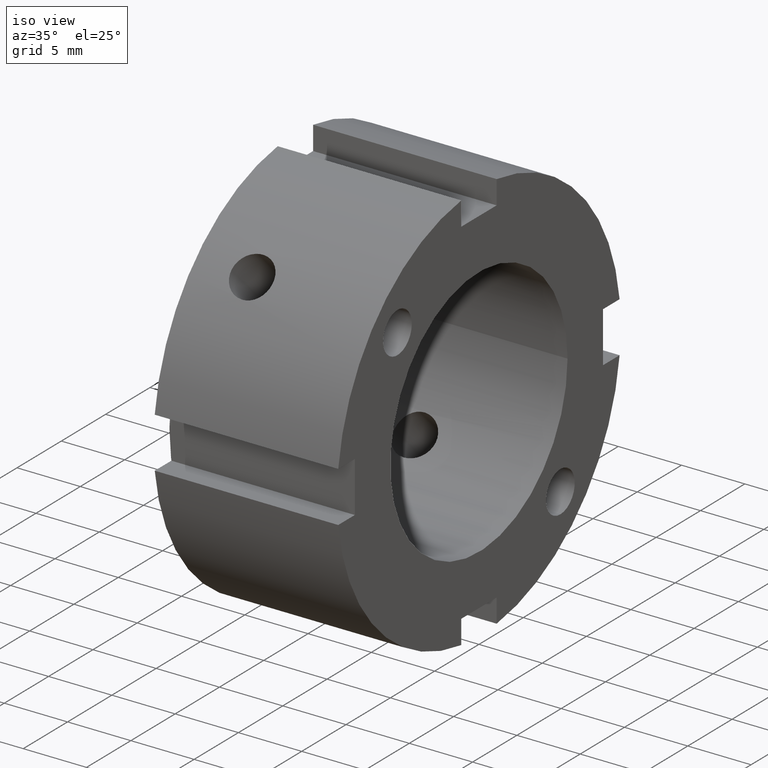
[diagram: clean part render]
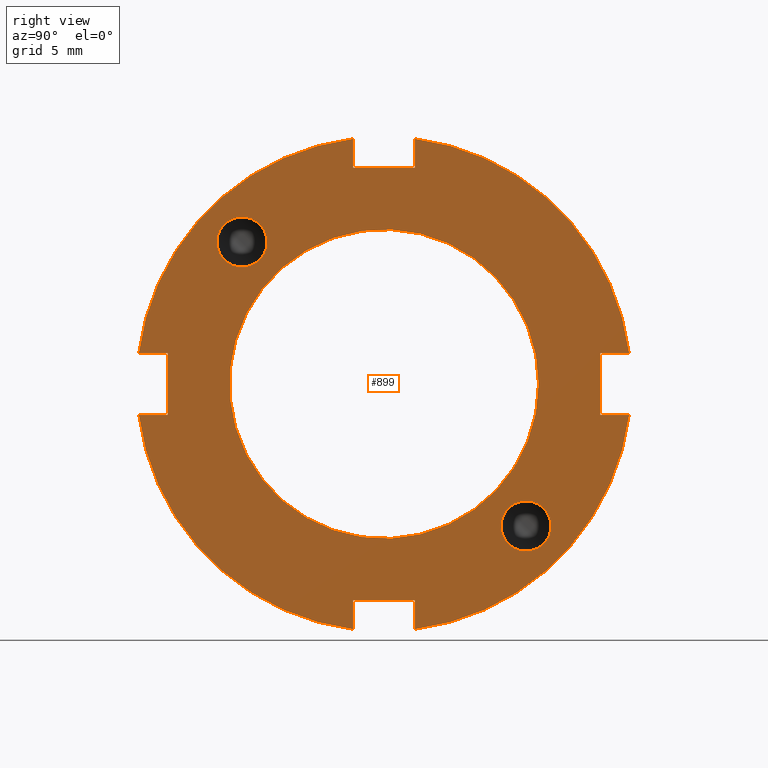
[diagram: tour spotlight — one face highlighted and labeled with its STEP entity id]
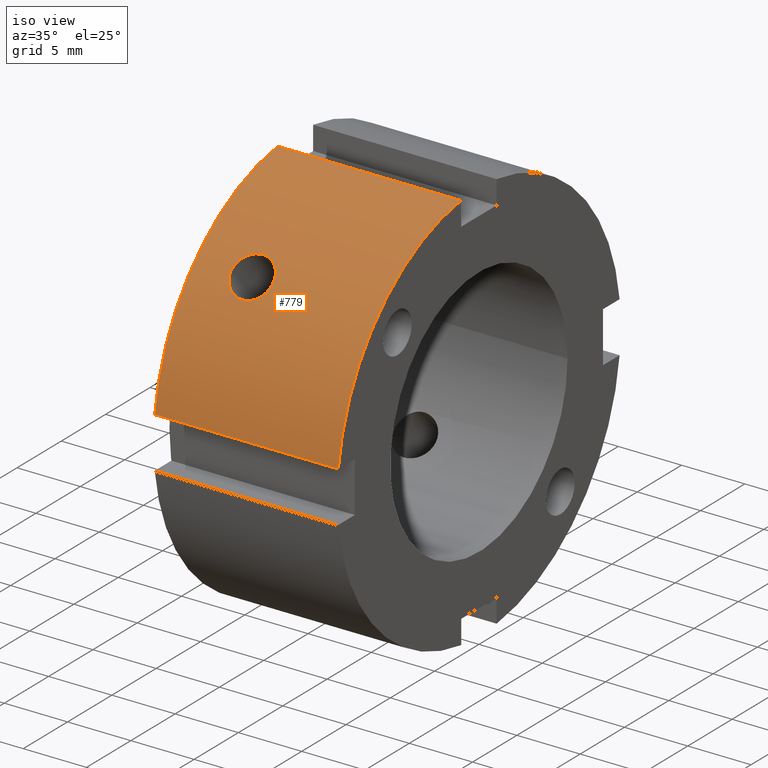
[diagram: tour spotlight — one face highlighted and labeled with its STEP entity id]
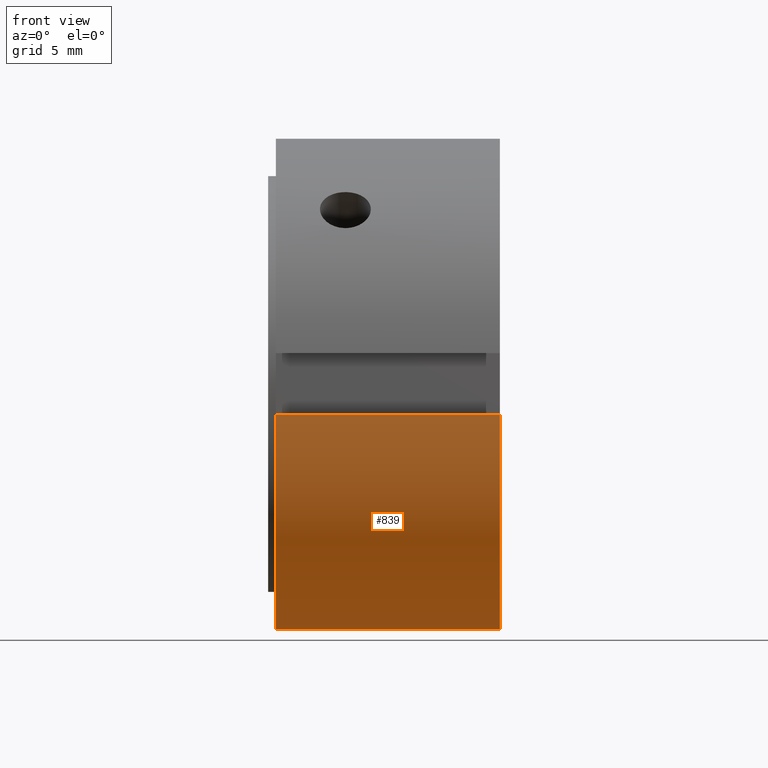
[diagram: tour spotlight — one face highlighted and labeled with its STEP entity id]
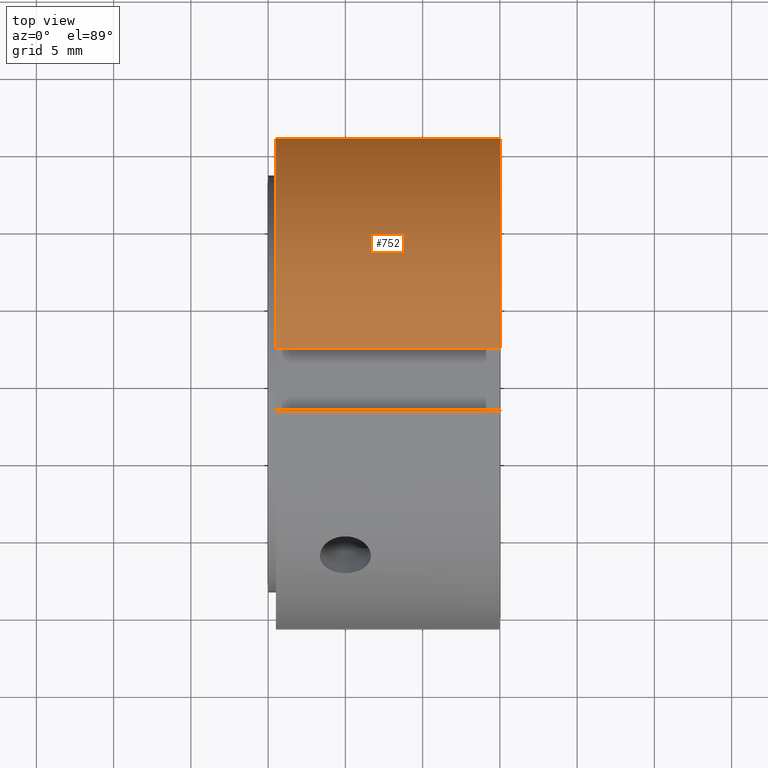
[diagram: tour spotlight — one face highlighted and labeled with its STEP entity id]
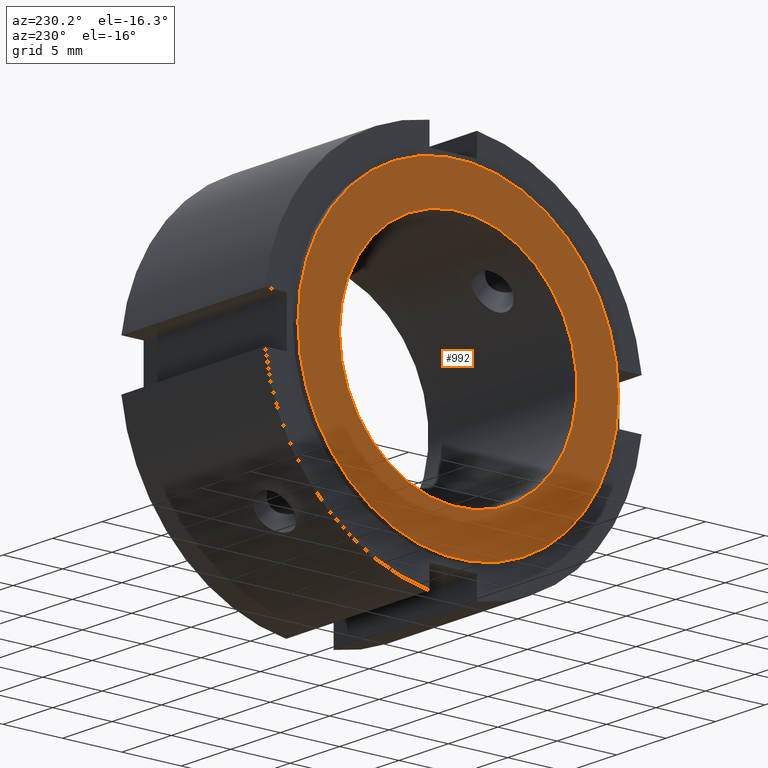
[diagram: tour spotlight — one face highlighted and labeled with its STEP entity id]
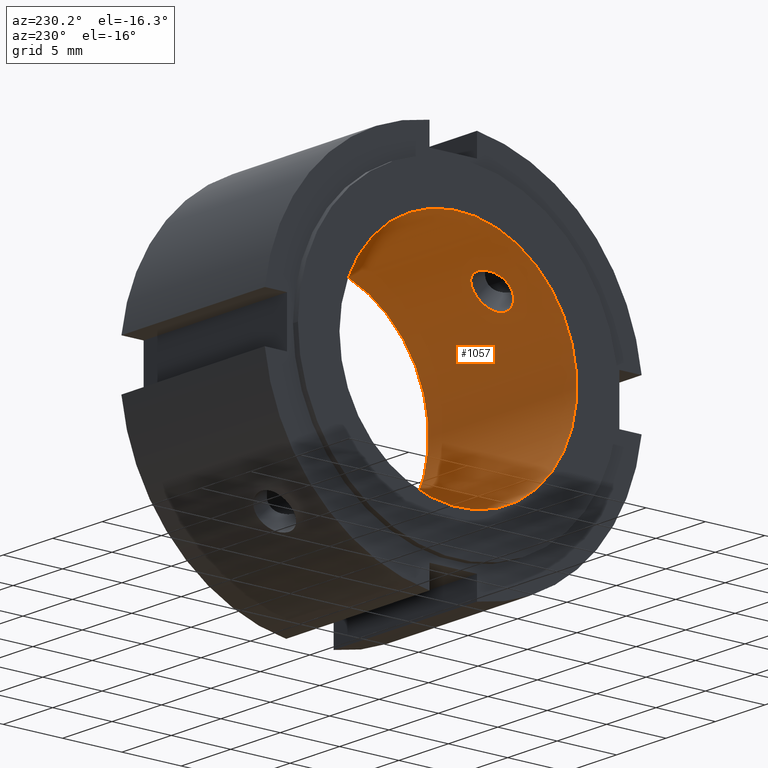
[diagram: tour spotlight — one face highlighted and labeled with its STEP entity id]
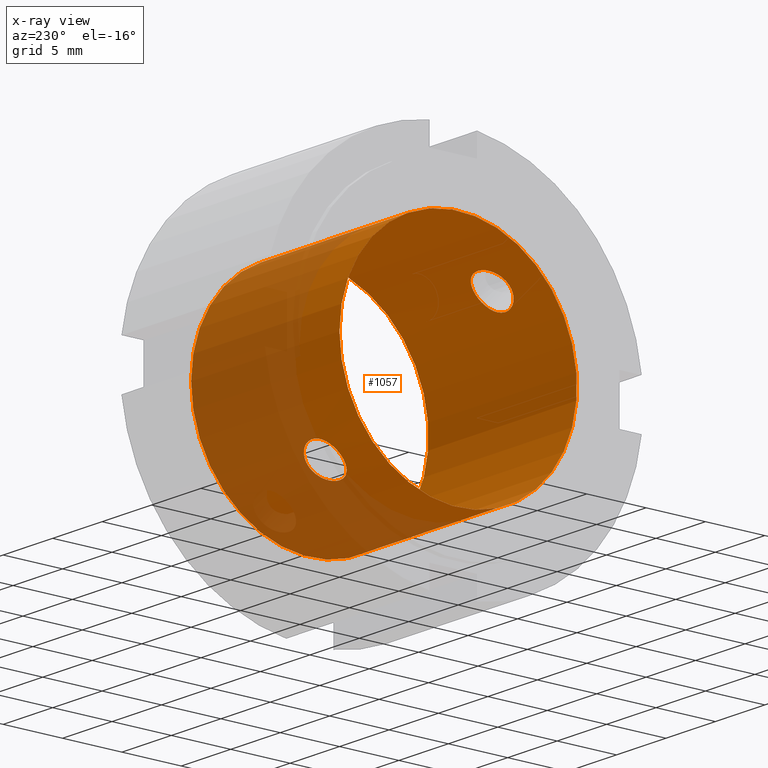
[diagram: x-ray of the same camera — body ghosted, this tour face saturated]
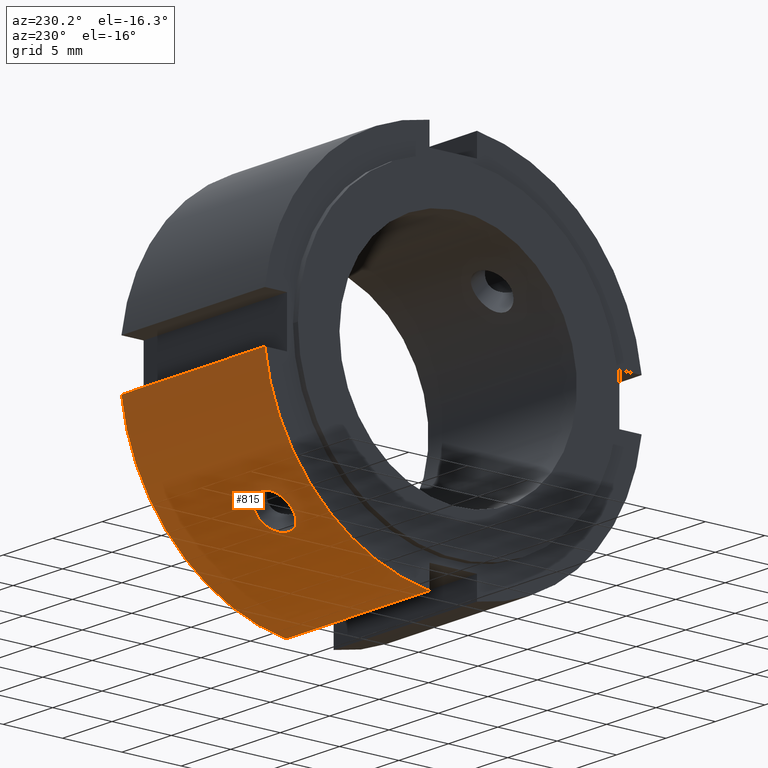
[diagram: tour spotlight — one face highlighted and labeled with its STEP entity id]
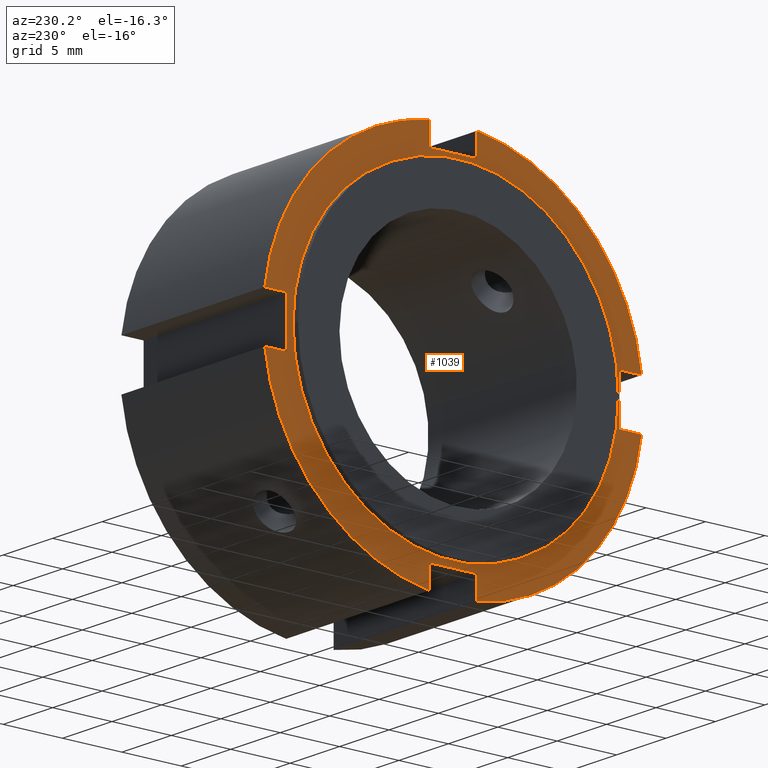
[diagram: tour spotlight — one face highlighted and labeled with its STEP entity id]
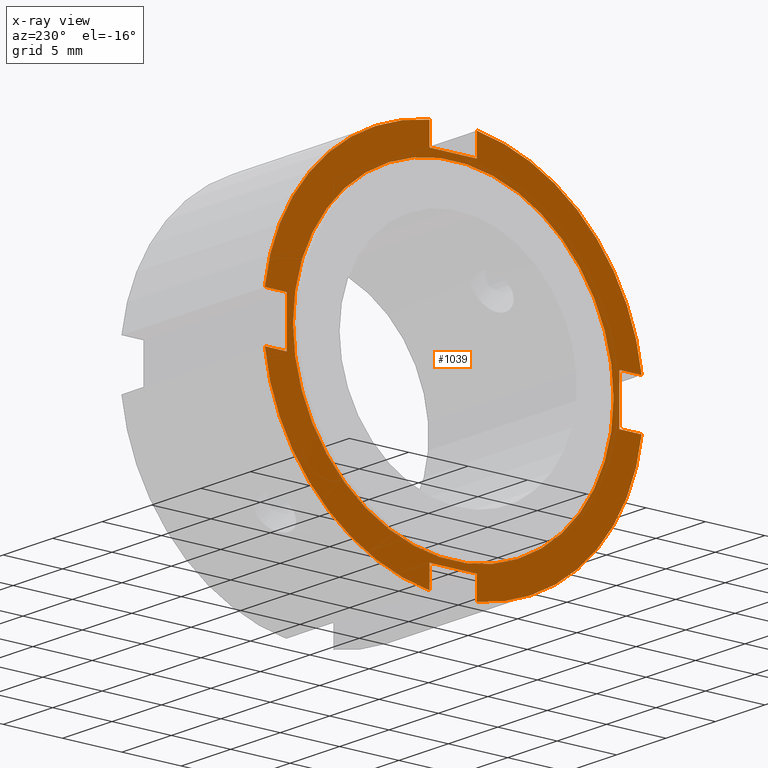
[diagram: x-ray of the same camera — body ghosted, this tour face saturated]
A machine part: a face-by-face anatomy tour. The part has 25 B-rep faces; the first image is the clean iso view, then the 8 largest visible faces are spotlighted one at a time (largest first), each with its STEP entity span.

Face 1 — right view, entity #899. In plain terms, the highlighted planar face has unit normal (1, 0, 0).
Definition (entity closure, byte-faithful):
#73=CARTESIAN_POINT('',(14.999999999999996,-10.813388155425116,9.192388155425119));
#74=VERTEX_POINT('',#73);
#75=CARTESIAN_POINT('',(14.999999999999996,-9.192388155425116,9.192388155425119));
#76=DIRECTION('',(-1.0,0.0,0.0));
#77=DIRECTION('',(0.0,-1.0,0.0));
#78=AXIS2_PLACEMENT_3D('',#75,#76,#77);
#79=CIRCLE('',#78,1.621);
#80=EDGE_CURVE('',#74,#74,#79,.T.);
#311=CARTESIAN_POINT('',(14.999999999999996,9.192388155425117,-10.81338815542512));
#312=VERTEX_POINT('',#311);
#313=CARTESIAN_POINT('',(14.999999999999996,9.192388155425117,-9.192388155425117));
#314=DIRECTION('',(-1.0,0.0,0.0));
#315=DIRECTION('',(0.0,0.0,-1.0));
#316=AXIS2_PLACEMENT_3D('',#313,#314,#315);
#317=CIRCLE('',#316,1.621);
#318=EDGE_CURVE('',#312,#312,#317,.T.);
#429=CARTESIAN_POINT('',(14.999999999999996,-2.000000000000002,-13.999999999999996));
#430=VERTEX_POINT('',#429);
#437=CARTESIAN_POINT('',(14.999999999999996,-2.000000000000003,-15.874507866387539));
#438=VERTEX_POINT('',#437);
#439=CARTESIAN_POINT('',(14.999999999999996,-2.000000000000002,-15.874507866387539));
#440=DIRECTION('',(0.0,0.0,1.0));
#441=VECTOR('',#440,1.874507866387543);
#442=LINE('',#439,#441);
#443=EDGE_CURVE('',#438,#430,#442,.T.);
#469=CARTESIAN_POINT('',(14.999999999999996,1.999999999999996,-15.874507866387539));
#470=VERTEX_POINT('',#469);
#477=CARTESIAN_POINT('',(14.999999999999996,1.999999999999997,-13.999999999999996));
#478=VERTEX_POINT('',#477);
#479=CARTESIAN_POINT('',(14.999999999999996,1.999999999999998,-13.999999999999996));
#480=DIRECTION('',(0.0,0.0,-1.0));
#481=VECTOR('',#480,1.874507866387543);
#482=LINE('',#479,#481);
#483=EDGE_CURVE('',#478,#470,#482,.T.);
#506=CARTESIAN_POINT('',(14.999999999999996,-2.000000000000004,-13.999999999999998));
#507=DIRECTION('',(0.0,1.0,0.0));
#508=VECTOR('',#507,4.000000000000001);
#509=LINE('',#506,#508);
#510=EDGE_CURVE('',#430,#478,#509,.T.);
#531=CARTESIAN_POINT('',(14.999999999999996,-13.999999999999996,2.000000000000001));
#532=VERTEX_POINT('',#531);
#539=CARTESIAN_POINT('',(14.999999999999996,-15.874507866387539,2.000000000000002));
#540=VERTEX_POINT('',#539);
#541=CARTESIAN_POINT('',(14.999999999999996,-15.874507866387539,2.000000000000001));
#542=DIRECTION('',(0.0,1.0,0.0));
#543=VECTOR('',#542,1.874507866387543);
#544=LINE('',#541,#543);
#545=EDGE_CURVE('',#540,#532,#544,.T.);
#571=CARTESIAN_POINT('',(14.999999999999996,-15.874507866387539,-1.999999999999997));
#572=VERTEX_POINT('',#571);
#579=CARTESIAN_POINT('',(14.999999999999996,-13.999999999999996,-1.999999999999998));
#580=VERTEX_POINT('',#579);
#581=CARTESIAN_POINT('',(14.999999999999996,-13.999999999999998,-1.999999999999998));
#582=DIRECTION('',(0.0,-1.0,0.0));
#583=VECTOR('',#582,1.874507866387543);
#584=LINE('',#581,#583);
#585=EDGE_CURVE('',#580,#572,#584,.T.);
#608=CARTESIAN_POINT('',(14.999999999999996,-13.999999999999995,2.000000000000001));
#609=DIRECTION('',(0.0,0.0,-1.0));
#610=VECTOR('',#609,4.0);
#611=LINE('',#608,#610);
#612=EDGE_CURVE('',#532,#580,#611,.T.);
#633=CARTESIAN_POINT('',(14.999999999999996,2.000000000000001,13.999999999999996));
#634=VERTEX_POINT('',#633);
#641=CARTESIAN_POINT('',(14.999999999999996,2.000000000000001,15.874507866387539));
#642=VERTEX_POINT('',#641);
#643=CARTESIAN_POINT('',(14.999999999999996,2.000000000000001,15.874507866387539));
#644=DIRECTION('',(0.0,0.0,-1.0));
#645=VECTOR('',#644,1.874507866387543);
#646=LINE('',#643,#645);
#647=EDGE_CURVE('',#642,#634,#646,.T.);
#673=CARTESIAN_POINT('',(14.999999999999996,-1.999999999999998,15.874507866387539));
#674=VERTEX_POINT('',#673);
#681=CARTESIAN_POINT('',(14.999999999999996,-1.999999999999999,13.999999999999996));
#682=VERTEX_POINT('',#681);
#683=CARTESIAN_POINT('',(14.999999999999996,-1.999999999999997,13.999999999999996));
#684=DIRECTION('',(0.0,0.0,1.0));
#685=VECTOR('',#684,1.874507866387543);
#686=LINE('',#683,#685);
#687=EDGE_CURVE('',#682,#674,#686,.T.);
#710=CARTESIAN_POINT('',(14.999999999999996,2.0,13.999999999999996));
#711=DIRECTION('',(0.0,-1.0,0.0));
#712=VECTOR('',#711,4.0);
#713=LINE('',#710,#712);
#714=EDGE_CURVE('',#634,#682,#713,.T.);
#726=CARTESIAN_POINT('',(14.999999999999996,15.874507866387539,2.0));
#727=VERTEX_POINT('',#726);
#728=CARTESIAN_POINT('',(14.999999999999996,0.0,0.0));
#729=DIRECTION('',(1.0,0.0,0.0));
#730=DIRECTION('',(0.0,1.0,0.0));
#731=AXIS2_PLACEMENT_3D('',#728,#729,#730);
#732=CIRCLE('',#731,15.999999999999998);
#733=EDGE_CURVE('',#727,#642,#732,.T.);
#759=CARTESIAN_POINT('',(14.999999999999996,0.0,0.0));
#760=DIRECTION('',(1.0,0.0,0.0));
#761=DIRECTION('',(0.0,1.0,0.0));
#762=AXIS2_PLACEMENT_3D('',#759,#760,#761);
#763=CIRCLE('',#762,15.999999999999998);
#764=EDGE_CURVE('',#674,#540,#763,.T.);
#795=CARTESIAN_POINT('',(14.999999999999996,15.874507866387539,-2.0));
#796=VERTEX_POINT('',#795);
#803=CARTESIAN_POINT('',(14.999999999999996,0.0,0.0));
#804=DIRECTION('',(1.0,0.0,0.0));
#805=DIRECTION('',(0.0,1.0,0.0));
#806=AXIS2_PLACEMENT_3D('',#803,#804,#805);
#807=CIRCLE('',#806,15.999999999999998);
#808=EDGE_CURVE('',#470,#796,#807,.T.);
#822=CARTESIAN_POINT('',(14.999999999999996,0.0,0.0));
#823=DIRECTION('',(1.0,0.0,0.0));
#824=DIRECTION('',(0.0,1.0,0.0));
#825=AXIS2_PLACEMENT_3D('',#822,#823,#824);
#826=CIRCLE('',#825,15.999999999999998);
#827=EDGE_CURVE('',#572,#438,#826,.T.);
#840=CARTESIAN_POINT('',(14.999999999999996,12.999999999999998,0.0));
#841=DIRECTION('',(1.0,0.0,0.0));
#842=DIRECTION('',(0.0,0.0,-1.0));
#843=AXIS2_PLACEMENT_3D('',#840,#841,#842);
#844=PLANE('',#843);
#845=ORIENTED_EDGE('',*,*,#443,.T.);
#846=ORIENTED_EDGE('',*,*,#510,.T.);
#847=ORIENTED_EDGE('',*,*,#483,.T.);
#848=ORIENTED_EDGE('',*,*,#808,.T.);
#849=CARTESIAN_POINT('',(14.999999999999996,13.999999999999996,-2.0));
#850=VERTEX_POINT('',#849);
#851=CARTESIAN_POINT('',(14.999999999999996,15.874507866387539,-2.0));
#852=DIRECTION('',(0.0,-1.0,0.0));
#853=VECTOR('',#852,1.874507866387543);
#854=LINE('',#851,#853);
#855=EDGE_CURVE('',#796,#850,#854,.T.);
#856=ORIENTED_EDGE('',*,*,#855,.T.);
#857=CARTESIAN_POINT('',(14.999999999999996,13.999999999999996,2.0));
#858=VERTEX_POINT('',#857);
#859=CARTESIAN_POINT('',(14.999999999999996,13.999999999999995,-2.0));
#860=DIRECTION('',(0.0,0.0,1.0));
#861=VECTOR('',#860,4.0);
#862=LINE('',#859,#861);
#863=EDGE_CURVE('',#850,#858,#862,.T.);
#864=ORIENTED_EDGE('',*,*,#863,.T.);
#865=CARTESIAN_POINT('',(14.999999999999996,13.999999999999996,2.0));
#866=DIRECTION('',(0.0,1.0,0.0));
#867=VECTOR('',#866,1.874507866387543);
#868=LINE('',#865,#867);
#869=EDGE_CURVE('',#858,#727,#868,.T.);
#870=ORIENTED_EDGE('',*,*,#869,.T.);
#871=ORIENTED_EDGE('',*,*,#733,.T.);
#872=ORIENTED_EDGE('',*,*,#647,.T.);
#873=ORIENTED_EDGE('',*,*,#714,.T.);
#874=ORIENTED_EDGE('',*,*,#687,.T.);
#875=ORIENTED_EDGE('',*,*,#764,.T.);
#876=ORIENTED_EDGE('',*,*,#545,.T.);
#877=ORIENTED_EDGE('',*,*,#612,.T.);
#878=ORIENTED_EDGE('',*,*,#585,.T.);
#879=ORIENTED_EDGE('',*,*,#827,.T.);
#880=EDGE_LOOP('',(#845,#846,#847,#848,#856,#864,#870,#871,#872,#873,#874,#875,#876,#877,#878,#879));
#881=FACE_OUTER_BOUND('',#880,.T.);
#882=ORIENTED_EDGE('',*,*,#80,.T.);
#883=EDGE_LOOP('',(#882));
#884=FACE_BOUND('',#883,.T.);
#885=ORIENTED_EDGE('',*,*,#318,.T.);
#886=EDGE_LOOP('',(#885));
#887=FACE_BOUND('',#886,.T.);
#888=CARTESIAN_POINT('',(14.999999999999996,10.0,0.0));
#889=VERTEX_POINT('',#888);
#890=CARTESIAN_POINT('',(14.999999999999996,0.0,0.0));
#891=DIRECTION('',(1.0,0.0,0.0));
#892=DIRECTION('',(0.0,1.0,0.0));
#893=AXIS2_PLACEMENT_3D('',#890,#891,#892);
#894=CIRCLE('',#893,10.0);
#895=EDGE_CURVE('',#889,#889,#894,.T.);
#896=ORIENTED_EDGE('',*,*,#895,.F.);
#897=EDGE_LOOP('',(#896));
#898=FACE_BOUND('',#897,.T.);
#899=ADVANCED_FACE('',(#881,#884,#887,#898),#844,.T.);

Face 2 — iso view, entity #779. In plain terms, the highlighted cylindrical surface (partial cylindrical patch) has radius 16 mm, axis along (1, 0, 0).
Definition (entity closure, byte-faithful):
#155=CARTESIAN_POINT('',(4.999999999999996,-12.420114567575144,10.086662189659545));
#156=VERTEX_POINT('',#155);
#157=CARTESIAN_POINT('',(4.999999999999996,-12.420114567575144,10.086662189659547));
#158=CARTESIAN_POINT('',(4.792663659632245,-12.420114567575144,10.086662189659547));
#159=CARTESIAN_POINT('',(4.571608693650929,-12.393953701340727,10.119143696572175));
#160=CARTESIAN_POINT('',(4.16512677785441,-12.286251284043512,10.249643255021541));
#161=CARTESIAN_POINT('',(3.979687199398132,-12.204549053884692,10.347489254358727));
#162=CARTESIAN_POINT('',(3.686860986654131,-12.012628808731057,10.569687810686009));
#163=CARTESIAN_POINT('',(3.559900775637115,-11.889556167077908,10.708866685158769));
#164=CARTESIAN_POINT('',(3.391466215537384,-11.613485061084397,11.007648989030365));
#165=CARTESIAN_POINT('',(3.349999999999995,-11.460316866524099,11.167100131445416));
#166=CARTESIAN_POINT('',(3.349999999999995,-11.167100131445405,11.460316866524106));
#167=CARTESIAN_POINT('',(3.39146621553738,-11.007648989030361,11.613485061084406));
#168=CARTESIAN_POINT('',(3.55990077563711,-10.708866685158764,11.889556167077917));
#169=CARTESIAN_POINT('',(3.68686098665413,-10.569687810685998,12.012628808731062));
#170=CARTESIAN_POINT('',(3.979687199398131,-10.34748925435872,12.204549053884699));
#171=CARTESIAN_POINT('',(4.165126777854407,-10.249643255021528,12.286251284043521));
#172=CARTESIAN_POINT('',(4.571608693650926,-10.119143696572161,12.393953701340736));
#173=CARTESIAN_POINT('',(4.792663659632245,-10.086662189659542,12.420114567575151));
#174=CARTESIAN_POINT('',(5.207336340367746,-10.086662189659542,12.420114567575151));
#175=CARTESIAN_POINT('',(5.428391306349065,-10.119143696572161,12.393953701340736));
#176=CARTESIAN_POINT('',(5.834873222145584,-10.249643255021528,12.286251284043521));
#177=CARTESIAN_POINT('',(6.020312800601859,-10.34748925435872,12.204549053884699));
#178=CARTESIAN_POINT('',(6.313139013345861,-10.569687810685998,12.012628808731062));
#179=CARTESIAN_POINT('',(6.440099224362882,-10.708866685158764,11.889556167077917));
#180=CARTESIAN_POINT('',(6.60853378446261,-11.007648989030361,11.613485061084406));
#181=CARTESIAN_POINT('',(6.649999999999996,-11.167100131445405,11.460316866524106));
#182=CARTESIAN_POINT('',(6.649999999999996,-11.460316866524099,11.167100131445418));
#183=CARTESIAN_POINT('',(6.60853378446261,-11.613485061084397,11.007648989030365));
#184=CARTESIAN_POINT('',(6.440099224362878,-11.889556167077908,10.708866685158769));
#185=CARTESIAN_POINT('',(6.313139013345861,-12.012628808731057,10.569687810686009));
#186=CARTESIAN_POINT('',(6.020312800601859,-12.204549053884692,10.347489254358727));
#187=CARTESIAN_POINT('',(5.834873222145581,-12.286251284043512,10.249643255021541));
#188=CARTESIAN_POINT('',(5.428391306349061,-12.393953701340727,10.119143696572175));
#189=CARTESIAN_POINT('',(5.207336340367748,-12.420114567575144,10.086662189659547));
#190=CARTESIAN_POINT('',(4.999999999999996,-12.420114567575144,10.086662189659547));
#191=B_SPLINE_CURVE_WITH_KNOTS('',3,(#157,#158,#159,#160,#161,#162,#163,#164,#165,#166,#167,#168,#169,#170,#171,#172,#173,#174,#175,#176,#177,#178,#179,#180,#181,#182,#183,#184,#185,#186,#187,#188,#189,#190),.UNSPECIFIED.,.T.,.U.,(4,2,2,2,2,2,2,2,2,2,2,2,2,2,2,2,4),(0.0,0.062200902110325,0.12440180422065,0.186602466740108,0.248803129259565,0.311003791779022,0.373204454298479,0.435405356408804,0.497606258519129,0.559807160629454,0.62200806273978,0.684208725259237,0.746409387778694,0.808610050298151,0.870810712817608,0.933011614927933,0.995212517038259),.UNSPECIFIED.);
#192=EDGE_CURVE('',#156,#156,#191,.T.);
#523=CARTESIAN_POINT('',(0.499999999999998,-15.874507866387539,2.000000000000002));
#524=VERTEX_POINT('',#523);
#539=CARTESIAN_POINT('',(14.999999999999996,-15.874507866387539,2.000000000000002));
#540=VERTEX_POINT('',#539);
#547=CARTESIAN_POINT('',(0.499999999999998,-15.874507866387539,2.000000000000001));
#548=DIRECTION('',(1.0,0.0,0.0));
#549=VECTOR('',#548,14.499999999999998);
#550=LINE('',#547,#549);
#551=EDGE_CURVE('',#524,#540,#550,.T.);
#663=CARTESIAN_POINT('',(0.499999999999998,-1.999999999999998,15.874507866387539));
#664=VERTEX_POINT('',#663);
#673=CARTESIAN_POINT('',(14.999999999999996,-1.999999999999998,15.874507866387539));
#674=VERTEX_POINT('',#673);
#675=CARTESIAN_POINT('',(14.999999999999996,-1.999999999999999,15.874507866387539));
#676=DIRECTION('',(-1.0,0.0,0.0));
#677=VECTOR('',#676,14.499999999999998);
#678=LINE('',#675,#677);
#679=EDGE_CURVE('',#674,#664,#678,.T.);
#753=CARTESIAN_POINT('',(7.749999999999996,0.0,0.0));
#754=DIRECTION('',(1.0,0.0,0.0));
#755=DIRECTION('',(0.0,1.0,0.0));
#756=AXIS2_PLACEMENT_3D('',#753,#754,#755);
#757=CYLINDRICAL_SURFACE('',#756,15.999999999999996);
#758=ORIENTED_EDGE('',*,*,#551,.T.);
#759=CARTESIAN_POINT('',(14.999999999999996,0.0,0.0));
#760=DIRECTION('',(1.0,0.0,0.0));
#761=DIRECTION('',(0.0,1.0,0.0));
#762=AXIS2_PLACEMENT_3D('',#759,#760,#761);
#763=CIRCLE('',#762,15.999999999999998);
#764=EDGE_CURVE('',#674,#540,#763,.T.);
#765=ORIENTED_EDGE('',*,*,#764,.F.);
#766=ORIENTED_EDGE('',*,*,#679,.T.);
#767=CARTESIAN_POINT('',(0.499999999999998,0.0,0.0));
#768=DIRECTION('',(1.0,0.0,0.0));
#769=DIRECTION('',(0.0,1.0,0.0));
#770=AXIS2_PLACEMENT_3D('',#767,#768,#769);
#771=CIRCLE('',#770,15.999999999999996);
#772=EDGE_CURVE('',#664,#524,#771,.T.);
#773=ORIENTED_EDGE('',*,*,#772,.T.);
#774=EDGE_LOOP('',(#758,#765,#766,#773));
#775=FACE_OUTER_BOUND('',#774,.T.);
#776=ORIENTED_EDGE('',*,*,#192,.T.);
#777=EDGE_LOOP('',(#776));
#778=FACE_BOUND('',#777,.T.);
#779=ADVANCED_FACE('',(#775,#778),#757,.T.);

Face 3 — front view, entity #839. In plain terms, the highlighted cylindrical surface (partial cylindrical patch) has radius 16 mm, axis along (1, 0, 0).
Definition (entity closure, byte-faithful):
#421=CARTESIAN_POINT('',(0.499999999999998,-2.000000000000003,-15.874507866387539));
#422=VERTEX_POINT('',#421);
#437=CARTESIAN_POINT('',(14.999999999999996,-2.000000000000003,-15.874507866387539));
#438=VERTEX_POINT('',#437);
#445=CARTESIAN_POINT('',(0.499999999999998,-2.000000000000003,-15.874507866387539));
#446=DIRECTION('',(1.0,0.0,0.0));
#447=VECTOR('',#446,14.499999999999998);
#448=LINE('',#445,#447);
#449=EDGE_CURVE('',#422,#438,#448,.T.);
#561=CARTESIAN_POINT('',(0.499999999999998,-15.874507866387539,-1.999999999999997));
#562=VERTEX_POINT('',#561);
#571=CARTESIAN_POINT('',(14.999999999999996,-15.874507866387539,-1.999999999999997));
#572=VERTEX_POINT('',#571);
#573=CARTESIAN_POINT('',(14.999999999999996,-15.874507866387539,-1.999999999999998));
#574=DIRECTION('',(-1.0,0.0,0.0));
#575=VECTOR('',#574,14.499999999999998);
#576=LINE('',#573,#575);
#577=EDGE_CURVE('',#572,#562,#576,.T.);
#816=CARTESIAN_POINT('',(7.749999999999996,0.0,0.0));
#817=DIRECTION('',(1.0,0.0,0.0));
#818=DIRECTION('',(0.0,1.0,0.0));
#819=AXIS2_PLACEMENT_3D('',#816,#817,#818);
#820=CYLINDRICAL_SURFACE('',#819,15.999999999999996);
#821=ORIENTED_EDGE('',*,*,#449,.T.);
#822=CARTESIAN_POINT('',(14.999999999999996,0.0,0.0));
#823=DIRECTION('',(1.0,0.0,0.0));
#824=DIRECTION('',(0.0,1.0,0.0));
#825=AXIS2_PLACEMENT_3D('',#822,#823,#824);
#826=CIRCLE('',#825,15.999999999999998);
#827=EDGE_CURVE('',#572,#438,#826,.T.);
#828=ORIENTED_EDGE('',*,*,#827,.F.);
#829=ORIENTED_EDGE('',*,*,#577,.T.);
#830=CARTESIAN_POINT('',(0.499999999999998,0.0,0.0));
#831=DIRECTION('',(1.0,0.0,0.0));
#832=DIRECTION('',(0.0,1.0,0.0));
#833=AXIS2_PLACEMENT_3D('',#830,#831,#832);
#834=CIRCLE('',#833,15.999999999999996);
#835=EDGE_CURVE('',#562,#422,#834,.T.);
#836=ORIENTED_EDGE('',*,*,#835,.T.);
#837=EDGE_LOOP('',(#821,#828,#829,#836));
#838=FACE_OUTER_BOUND('',#837,.T.);
#839=ADVANCED_FACE('',(#838),#820,.T.);

Face 4 — top view, entity #752. In plain terms, the highlighted cylindrical surface (partial cylindrical patch) has radius 16 mm, axis along (1, 0, 0).
Definition (entity closure, byte-faithful):
#625=CARTESIAN_POINT('',(0.499999999999998,2.000000000000001,15.874507866387539));
#626=VERTEX_POINT('',#625);
#641=CARTESIAN_POINT('',(14.999999999999996,2.000000000000001,15.874507866387539));
#642=VERTEX_POINT('',#641);
#649=CARTESIAN_POINT('',(0.499999999999998,2.000000000000001,15.874507866387539));
#650=DIRECTION('',(1.0,0.0,0.0));
#651=VECTOR('',#650,14.499999999999998);
#652=LINE('',#649,#651);
#653=EDGE_CURVE('',#626,#642,#652,.T.);
#720=CARTESIAN_POINT('',(7.749999999999996,0.0,0.0));
#721=DIRECTION('',(1.0,0.0,0.0));
#722=DIRECTION('',(0.0,1.0,0.0));
#723=AXIS2_PLACEMENT_3D('',#720,#721,#722);
#724=CYLINDRICAL_SURFACE('',#723,15.999999999999996);
#725=ORIENTED_EDGE('',*,*,#653,.T.);
#726=CARTESIAN_POINT('',(14.999999999999996,15.874507866387539,2.0));
#727=VERTEX_POINT('',#726);
#728=CARTESIAN_POINT('',(14.999999999999996,0.0,0.0));
#729=DIRECTION('',(1.0,0.0,0.0));
#730=DIRECTION('',(0.0,1.0,0.0));
#731=AXIS2_PLACEMENT_3D('',#728,#729,#730);
#732=CIRCLE('',#731,15.999999999999998);
#733=EDGE_CURVE('',#727,#642,#732,.T.);
#734=ORIENTED_EDGE('',*,*,#733,.F.);
#735=CARTESIAN_POINT('',(0.499999999999998,15.874507866387539,2.0));
#736=VERTEX_POINT('',#735);
#737=CARTESIAN_POINT('',(14.999999999999996,15.874507866387539,2.0));
#738=DIRECTION('',(-1.0,0.0,0.0));
#739=VECTOR('',#738,14.499999999999998);
#740=LINE('',#737,#739);
#741=EDGE_CURVE('',#727,#736,#740,.T.);
#742=ORIENTED_EDGE('',*,*,#741,.T.);
#743=CARTESIAN_POINT('',(0.499999999999998,0.0,0.0));
#744=DIRECTION('',(1.0,0.0,0.0));
#745=DIRECTION('',(0.0,1.0,0.0));
#746=AXIS2_PLACEMENT_3D('',#743,#744,#745);
#747=CIRCLE('',#746,15.999999999999996);
#748=EDGE_CURVE('',#736,#626,#747,.T.);
#749=ORIENTED_EDGE('',*,*,#748,.T.);
#750=EDGE_LOOP('',(#725,#734,#742,#749));
#751=FACE_OUTER_BOUND('',#750,.T.);
#752=ADVANCED_FACE('',(#751),#724,.T.);

Face 5 — auxiliary view, entity #992. In plain terms, the highlighted planar face has unit normal (-1, 0, 0).
Definition (entity closure, byte-faithful):
#965=CARTESIAN_POINT('',(-3.304428E-015,11.749999999999998,0.0));
#966=DIRECTION('',(-1.0,0.0,0.0));
#967=DIRECTION('',(0.0,0.0,1.0));
#968=AXIS2_PLACEMENT_3D('',#965,#966,#967);
#969=PLANE('',#968);
#970=CARTESIAN_POINT('',(-4.440892E-015,13.499999999999998,0.0));
#971=VERTEX_POINT('',#970);
#972=CARTESIAN_POINT('',(-4.440892E-015,0.0,0.0));
#973=DIRECTION('',(1.0,0.0,0.0));
#974=DIRECTION('',(0.0,1.0,0.0));
#975=AXIS2_PLACEMENT_3D('',#972,#973,#974);
#976=CIRCLE('',#975,13.499999999999998);
#977=EDGE_CURVE('',#971,#971,#976,.T.);
#978=ORIENTED_EDGE('',*,*,#977,.F.);
#979=EDGE_LOOP('',(#978));
#980=FACE_OUTER_BOUND('',#979,.T.);
#981=CARTESIAN_POINT('',(-2.167965E-015,10.0,0.0));
#982=VERTEX_POINT('',#981);
#983=CARTESIAN_POINT('',(-2.168404E-015,0.0,0.0));
#984=DIRECTION('',(1.0,0.0,0.0));
#985=DIRECTION('',(0.0,1.0,0.0));
#986=AXIS2_PLACEMENT_3D('',#983,#984,#985);
#987=CIRCLE('',#986,10.0);
#988=EDGE_CURVE('',#982,#982,#987,.T.);
#989=ORIENTED_EDGE('',*,*,#988,.T.);
#990=EDGE_LOOP('',(#989));
#991=FACE_BOUND('',#990,.T.);
#992=ADVANCED_FACE('',(#980,#991),#969,.T.);

Face 6 — auxiliary view, entity #1057. An x-ray twin of the same camera follows (body ghosted, this face saturated) — the face is partly hidden behind the body. In plain terms, the highlighted cylindrical surface (bore or boss wall) has radius 10 mm, axis along (1, 0, 0).
Definition (entity closure, byte-faithful):
#199=CARTESIAN_POINT('',(4.999999999999996,-8.140874882526072,5.807422504610468));
#200=VERTEX_POINT('',#199);
#201=CARTESIAN_POINT('',(4.999999999999996,-8.140874882526068,5.807422504610472));
#202=CARTESIAN_POINT('',(5.207588777420593,-8.140874882526068,5.807422504610472));
#203=CARTESIAN_POINT('',(5.428749508045883,-8.116597860312618,5.841926613010431));
#204=CARTESIAN_POINT('',(5.835159784607249,-8.015822172041409,5.979453336035396));
#205=CARTESIAN_POINT('',(6.020442580638714,-7.939062193465798,6.082185930628081));
#206=CARTESIAN_POINT('',(6.313006046132061,-7.756491044388869,6.31336200230672));
#207=CARTESIAN_POINT('',(6.439929404162552,-7.638383916018895,6.457286595623886));
#208=CARTESIAN_POINT('',(6.608436791928987,-7.369201970303271,6.762863398406582));
#209=CARTESIAN_POINT('',(6.649999999999996,-7.21785148001344,6.924284143717512));
#210=CARTESIAN_POINT('',(6.649999999999996,-6.9242841437175,7.217851480013449));
#211=CARTESIAN_POINT('',(6.608436791928988,-6.762863398406571,7.36920197030328));
#212=CARTESIAN_POINT('',(6.439929404162552,-6.457286595623874,7.638383916018903));
#213=CARTESIAN_POINT('',(6.313006046132061,-6.313362002306706,7.756491044388878));
#214=CARTESIAN_POINT('',(6.020442580638714,-6.08218593062807,7.939062193465805));
#215=CARTESIAN_POINT('',(5.83515978460725,-5.979453336035382,8.015822172041419));
#216=CARTESIAN_POINT('',(5.428749508045883,-5.841926613010417,8.116597860312631));
#217=CARTESIAN_POINT('',(5.207588777420593,-5.807422504610461,8.140874882526077));
#218=CARTESIAN_POINT('',(4.792411222579398,-5.807422504610461,8.140874882526077));
#219=CARTESIAN_POINT('',(4.571250491954108,-5.841926613010415,8.116597860312629));
#220=CARTESIAN_POINT('',(4.164840215392741,-5.97945333603538,8.015822172041421));
#221=CARTESIAN_POINT('',(3.979557419361278,-6.08218593062807,7.939062193465805));
#222=CARTESIAN_POINT('',(3.686993953867931,-6.313362002306707,7.756491044388878));
#223=CARTESIAN_POINT('',(3.56007059583744,-6.457286595623874,7.638383916018904));
#224=CARTESIAN_POINT('',(3.391563208071004,-6.76286339840657,7.36920197030328));
#225=CARTESIAN_POINT('',(3.349999999999995,-6.9242841437175,7.217851480013449));
#226=CARTESIAN_POINT('',(3.349999999999995,-7.21785148001344,6.924284143717512));
#227=CARTESIAN_POINT('',(3.391563208071004,-7.369201970303269,6.762863398406582));
#228=CARTESIAN_POINT('',(3.560070595837439,-7.638383916018893,6.457286595623887));
#229=CARTESIAN_POINT('',(3.68699395386793,-7.756491044388869,6.31336200230672));
#230=CARTESIAN_POINT('',(3.979557419361277,-7.939062193465798,6.082185930628081));
#231=CARTESIAN_POINT('',(4.164840215392742,-8.015822172041409,5.979453336035396));
#232=CARTESIAN_POINT('',(4.57125049195411,-8.116597860312618,5.841926613010431));
#233=CARTESIAN_POINT('',(4.792411222579398,-8.140874882526068,5.807422504610472));
#234=CARTESIAN_POINT('',(4.999999999999996,-8.140874882526068,5.807422504610472));
#235=B_SPLINE_CURVE_WITH_KNOTS('',3,(#201,#202,#203,#204,#205,#206,#207,#208,#209,#210,#211,#212,#213,#214,#215,#216,#217,#218,#219,#220,#221,#222,#223,#224,#225,#226,#227,#228,#229,#230,#231,#232,#233,#234),.UNSPECIFIED.,.T.,.U.,(4,2,2,2,2,2,2,2,2,2,2,2,2,2,2,2,4),(0.0,0.062276633226179,0.124553266452359,0.186828302721278,0.249103338990196,0.311378375259115,0.373653411528034,0.435930044754214,0.498206677980393,0.560483311206572,0.622759944432752,0.685034980701671,0.74731001697059,0.809585053239508,0.871860089508427,0.934136722734607,0.996413355960786),.UNSPECIFIED.);
#236=EDGE_CURVE('',#200,#200,#235,.T.);
#372=CARTESIAN_POINT('',(4.999999999999996,5.807422504610465,-8.140874882526072));
#373=VERTEX_POINT('',#372);
#374=CARTESIAN_POINT('',(4.999999999999996,5.807422504610465,-8.140874882526074));
#375=CARTESIAN_POINT('',(4.792411222579398,5.807422504610465,-8.140874882526074));
#376=CARTESIAN_POINT('',(4.571250491954108,5.841926613010421,-8.116597860312625));
#377=CARTESIAN_POINT('',(4.164840215392741,5.979453336035387,-8.015822172041416));
#378=CARTESIAN_POINT('',(3.979557419361278,6.082185930628075,-7.939062193465802));
#379=CARTESIAN_POINT('',(3.686993953867931,6.313362002306713,-7.756491044388874));
#380=CARTESIAN_POINT('',(3.560070595837439,6.45728659562388,-7.638383916018901));
#381=CARTESIAN_POINT('',(3.391563208071005,6.762863398406577,-7.369201970303277));
#382=CARTESIAN_POINT('',(3.349999999999995,6.924284143717506,-7.217851480013444));
#383=CARTESIAN_POINT('',(3.349999999999995,7.217851480013444,-6.924284143717507));
#384=CARTESIAN_POINT('',(3.391563208071004,7.369201970303275,-6.762863398406578));
#385=CARTESIAN_POINT('',(3.560070595837439,7.638383916018898,-6.457286595623881));
#386=CARTESIAN_POINT('',(3.68699395386793,7.756491044388874,-6.313362002306713));
#387=CARTESIAN_POINT('',(3.979557419361277,7.9390621934658,-6.082185930628077));
#388=CARTESIAN_POINT('',(4.164840215392742,8.015822172041411,-5.979453336035392));
#389=CARTESIAN_POINT('',(4.57125049195411,8.116597860312622,-5.841926613010426));
#390=CARTESIAN_POINT('',(4.792411222579397,8.140874882526072,-5.807422504610468));
#391=CARTESIAN_POINT('',(5.207588777420593,8.140874882526072,-5.807422504610468));
#392=CARTESIAN_POINT('',(5.428749508045883,8.116597860312622,-5.841926613010426));
#393=CARTESIAN_POINT('',(5.835159784607249,8.015822172041411,-5.979453336035392));
#394=CARTESIAN_POINT('',(6.020442580638714,7.9390621934658,-6.082185930628077));
#395=CARTESIAN_POINT('',(6.313006046132061,7.756491044388874,-6.313362002306713));
#396=CARTESIAN_POINT('',(6.439929404162552,7.638383916018898,-6.457286595623881));
#397=CARTESIAN_POINT('',(6.608436791928987,7.369201970303275,-6.762863398406578));
#398=CARTESIAN_POINT('',(6.649999999999996,7.217851480013444,-6.924284143717506));
#399=CARTESIAN_POINT('',(6.649999999999996,6.924284143717506,-7.217851480013444));
#400=CARTESIAN_POINT('',(6.608436791928987,6.762863398406577,-7.369201970303276));
#401=CARTESIAN_POINT('',(6.439929404162552,6.45728659562388,-7.638383916018898));
#402=CARTESIAN_POINT('',(6.313006046132061,6.313362002306713,-7.756491044388874));
#403=CARTESIAN_POINT('',(6.020442580638714,6.082185930628075,-7.939062193465802));
#404=CARTESIAN_POINT('',(5.83515978460725,5.979453336035388,-8.015822172041414));
#405=CARTESIAN_POINT('',(5.428749508045883,5.841926613010423,-8.116597860312625));
#406=CARTESIAN_POINT('',(5.207588777420593,5.807422504610465,-8.140874882526074));
#407=CARTESIAN_POINT('',(4.999999999999996,5.807422504610465,-8.140874882526074));
#408=B_SPLINE_CURVE_WITH_KNOTS('',3,(#374,#375,#376,#377,#378,#379,#380,#381,#382,#383,#384,#385,#386,#387,#388,#389,#390,#391,#392,#393,#394,#395,#396,#397,#398,#399,#400,#401,#402,#403,#404,#405,#406,#407),.UNSPECIFIED.,.T.,.U.,(4,2,2,2,2,2,2,2,2,2,2,2,2,2,2,2,4),(0.0,0.062276633226179,0.124553266452359,0.186828302721278,0.249103338990197,0.311378375259115,0.373653411528034,0.435930044754214,0.498206677980393,0.560483311206572,0.622759944432752,0.685034980701671,0.74731001697059,0.809585053239509,0.871860089508427,0.934136722734607,0.996413355960786),.UNSPECIFIED.);
#409=EDGE_CURVE('',#373,#373,#408,.T.);
#888=CARTESIAN_POINT('',(14.999999999999996,10.0,0.0));
#889=VERTEX_POINT('',#888);
#890=CARTESIAN_POINT('',(14.999999999999996,0.0,0.0));
#891=DIRECTION('',(1.0,0.0,0.0));
#892=DIRECTION('',(0.0,1.0,0.0));
#893=AXIS2_PLACEMENT_3D('',#890,#891,#892);
#894=CIRCLE('',#893,10.0);
#895=EDGE_CURVE('',#889,#889,#894,.T.);
#981=CARTESIAN_POINT('',(-2.167965E-015,10.0,0.0));
#982=VERTEX_POINT('',#981);
#983=CARTESIAN_POINT('',(-2.168404E-015,0.0,0.0));
#984=DIRECTION('',(1.0,0.0,0.0));
#985=DIRECTION('',(0.0,1.0,0.0));
#986=AXIS2_PLACEMENT_3D('',#983,#984,#985);
#987=CIRCLE('',#986,10.0);
#988=EDGE_CURVE('',#982,#982,#987,.T.);
#1040=CARTESIAN_POINT('',(7.499999999999996,0.0,0.0));
#1041=DIRECTION('',(1.0,0.0,0.0));
#1042=DIRECTION('',(0.0,1.0,0.0));
#1043=AXIS2_PLACEMENT_3D('',#1040,#1041,#1042);
#1044=CYLINDRICAL_SURFACE('',#1043,10.0);
#1045=ORIENTED_EDGE('',*,*,#988,.F.);
#1046=EDGE_LOOP('',(#1045));
#1047=FACE_OUTER_BOUND('',#1046,.T.);
#1048=ORIENTED_EDGE('',*,*,#236,.T.);
#1049=EDGE_LOOP('',(#1048));
#1050=FACE_BOUND('',#1049,.T.);
#1051=ORIENTED_EDGE('',*,*,#409,.T.);
#1052=EDGE_LOOP('',(#1051));
#1053=FACE_BOUND('',#1052,.T.);
#1054=ORIENTED_EDGE('',*,*,#895,.T.);
#1055=EDGE_LOOP('',(#1054));
#1056=FACE_BOUND('',#1055,.T.);
#1057=ADVANCED_FACE('',(#1047,#1050,#1053,#1056),#1044,.F.);

Face 7 — auxiliary view, entity #815. In plain terms, the highlighted cylindrical surface (partial cylindrical patch) has radius 16 mm, axis along (1, 0, 0).
Definition (entity closure, byte-faithful):
#328=CARTESIAN_POINT('',(4.999999999999996,10.086662189659544,-12.420114567575148));
#329=VERTEX_POINT('',#328);
#330=CARTESIAN_POINT('',(4.999999999999995,10.086662189659542,-12.420114567575149));
#331=CARTESIAN_POINT('',(5.207336340367745,10.086662189659542,-12.420114567575149));
#332=CARTESIAN_POINT('',(5.428391306349065,10.119143696572163,-12.393953701340735));
#333=CARTESIAN_POINT('',(5.834873222145586,10.24964325502153,-12.286251284043519));
#334=CARTESIAN_POINT('',(6.020312800601859,10.347489254358727,-12.204549053884694));
#335=CARTESIAN_POINT('',(6.313139013345861,10.569687810686009,-12.012628808731058));
#336=CARTESIAN_POINT('',(6.440099224362882,10.708866685158767,-11.889556167077913));
#337=CARTESIAN_POINT('',(6.60853378446261,11.007648989030363,-11.613485061084404));
#338=CARTESIAN_POINT('',(6.649999999999996,11.167100131445411,-11.460316866524103));
#339=CARTESIAN_POINT('',(6.649999999999996,11.460316866524105,-11.167100131445409));
#340=CARTESIAN_POINT('',(6.608533784462606,11.6134850610844,-11.007648989030361));
#341=CARTESIAN_POINT('',(6.440099224362875,11.889556167077913,-10.708866685158764));
#342=CARTESIAN_POINT('',(6.313139013345861,12.01262880873106,-10.569687810686004));
#343=CARTESIAN_POINT('',(6.020312800601858,12.204549053884698,-10.347489254358724));
#344=CARTESIAN_POINT('',(5.83487322214558,12.286251284043519,-10.249643255021537));
#345=CARTESIAN_POINT('',(5.428391306349061,12.393953701340735,-10.11914369657217));
#346=CARTESIAN_POINT('',(5.207336340367746,12.420114567575151,-10.086662189659542));
#347=CARTESIAN_POINT('',(4.792663659632245,12.420114567575151,-10.086662189659542));
#348=CARTESIAN_POINT('',(4.57160869365093,12.393953701340735,-10.11914369657217));
#349=CARTESIAN_POINT('',(4.16512677785441,12.286251284043519,-10.249643255021537));
#350=CARTESIAN_POINT('',(3.979687199398133,12.204549053884698,-10.347489254358724));
#351=CARTESIAN_POINT('',(3.686860986654131,12.01262880873106,-10.569687810686004));
#352=CARTESIAN_POINT('',(3.559900775637115,11.889556167077913,-10.708866685158764));
#353=CARTESIAN_POINT('',(3.391466215537384,11.6134850610844,-11.007648989030361));
#354=CARTESIAN_POINT('',(3.349999999999995,11.460316866524105,-11.167100131445409));
#355=CARTESIAN_POINT('',(3.349999999999994,11.167100131445409,-11.460316866524103));
#356=CARTESIAN_POINT('',(3.391466215537382,11.007648989030363,-11.613485061084404));
#357=CARTESIAN_POINT('',(3.55990077563711,10.708866685158767,-11.889556167077913));
#358=CARTESIAN_POINT('',(3.68686098665413,10.569687810686009,-12.012628808731058));
#359=CARTESIAN_POINT('',(3.979687199398131,10.347489254358727,-12.204549053884694));
#360=CARTESIAN_POINT('',(4.165126777854406,10.249643255021535,-12.286251284043519));
#361=CARTESIAN_POINT('',(4.571608693650925,10.119143696572166,-12.393953701340735));
#362=CARTESIAN_POINT('',(4.792663659632244,10.086662189659542,-12.420114567575149));
#363=CARTESIAN_POINT('',(4.999999999999996,10.086662189659542,-12.420114567575149));
#364=B_SPLINE_CURVE_WITH_KNOTS('',3,(#330,#331,#332,#333,#334,#335,#336,#337,#338,#339,#340,#341,#342,#343,#344,#345,#346,#347,#348,#349,#350,#351,#352,#353,#354,#355,#356,#357,#358,#359,#360,#361,#362,#363),.UNSPECIFIED.,.T.,.U.,(4,2,2,2,2,2,2,2,2,2,2,2,2,2,2,2,4),(0.0,0.062200902110325,0.124401804220651,0.186602466740108,0.248803129259565,0.311003791779022,0.373204454298479,0.435405356408804,0.497606258519129,0.559807160629455,0.62200806273978,0.684208725259237,0.746409387778694,0.808610050298151,0.870810712817608,0.933011614927933,0.995212517038259),.UNSPECIFIED.);
#365=EDGE_CURVE('',#329,#329,#364,.T.);
#459=CARTESIAN_POINT('',(0.499999999999998,1.999999999999996,-15.874507866387539));
#460=VERTEX_POINT('',#459);
#469=CARTESIAN_POINT('',(14.999999999999996,1.999999999999996,-15.874507866387539));
#470=VERTEX_POINT('',#469);
#471=CARTESIAN_POINT('',(14.999999999999996,1.999999999999996,-15.874507866387543));
#472=DIRECTION('',(-1.0,0.0,0.0));
#473=VECTOR('',#472,14.499999999999998);
#474=LINE('',#471,#473);
#475=EDGE_CURVE('',#470,#460,#474,.T.);
#780=CARTESIAN_POINT('',(7.749999999999996,0.0,0.0));
#781=DIRECTION('',(1.0,0.0,0.0));
#782=DIRECTION('',(0.0,1.0,0.0));
#783=AXIS2_PLACEMENT_3D('',#780,#781,#782);
#784=CYLINDRICAL_SURFACE('',#783,15.999999999999996);
#785=ORIENTED_EDGE('',*,*,#475,.T.);
#786=CARTESIAN_POINT('',(0.499999999999998,15.874507866387539,-2.0));
#787=VERTEX_POINT('',#786);
#788=CARTESIAN_POINT('',(0.499999999999998,0.0,0.0));
#789=DIRECTION('',(1.0,0.0,0.0));
#790=DIRECTION('',(0.0,1.0,0.0));
#791=AXIS2_PLACEMENT_3D('',#788,#789,#790);
#792=CIRCLE('',#791,15.999999999999996);
#793=EDGE_CURVE('',#460,#787,#792,.T.);
#794=ORIENTED_EDGE('',*,*,#793,.T.);
#795=CARTESIAN_POINT('',(14.999999999999996,15.874507866387539,-2.0));
#796=VERTEX_POINT('',#795);
#797=CARTESIAN_POINT('',(0.499999999999998,15.874507866387539,-2.0));
#798=DIRECTION('',(1.0,0.0,0.0));
#799=VECTOR('',#798,14.499999999999998);
#800=LINE('',#797,#799);
#801=EDGE_CURVE('',#787,#796,#800,.T.);
#802=ORIENTED_EDGE('',*,*,#801,.T.);
#803=CARTESIAN_POINT('',(14.999999999999996,0.0,0.0));
#804=DIRECTION('',(1.0,0.0,0.0));
#805=DIRECTION('',(0.0,1.0,0.0));
#806=AXIS2_PLACEMENT_3D('',#803,#804,#805);
#807=CIRCLE('',#806,15.999999999999998);
#808=EDGE_CURVE('',#470,#796,#807,.T.);
#809=ORIENTED_EDGE('',*,*,#808,.F.);
#810=EDGE_LOOP('',(#785,#794,#802,#809));
#811=FACE_OUTER_BOUND('',#810,.T.);
#812=ORIENTED_EDGE('',*,*,#365,.T.);
#813=EDGE_LOOP('',(#812));
#814=FACE_BOUND('',#813,.T.);
#815=ADVANCED_FACE('',(#811,#814),#784,.T.);

Face 8 — auxiliary view, entity #1039. An x-ray twin of the same camera follows (body ghosted, this face saturated) — the face is partly hidden behind the body. In plain terms, the highlighted planar face has unit normal (-1, 0, 0).
Definition (entity closure, byte-faithful):
#419=CARTESIAN_POINT('',(0.499999999999998,-2.000000000000002,-13.999999999999996));
#420=VERTEX_POINT('',#419);
#421=CARTESIAN_POINT('',(0.499999999999998,-2.000000000000003,-15.874507866387539));
#422=VERTEX_POINT('',#421);
#423=CARTESIAN_POINT('',(0.499999999999998,-2.000000000000002,-13.999999999999996));
#424=DIRECTION('',(0.0,0.0,-1.0));
#425=VECTOR('',#424,1.874507866387543);
#426=LINE('',#423,#425);
#427=EDGE_CURVE('',#420,#422,#426,.T.);
#459=CARTESIAN_POINT('',(0.499999999999998,1.999999999999996,-15.874507866387539));
#460=VERTEX_POINT('',#459);
#461=CARTESIAN_POINT('',(0.499999999999998,1.999999999999997,-13.999999999999996));
#462=VERTEX_POINT('',#461);
#463=CARTESIAN_POINT('',(0.499999999999998,1.999999999999997,-15.874507866387539));
#464=DIRECTION('',(0.0,0.0,1.0));
#465=VECTOR('',#464,1.874507866387543);
#466=LINE('',#463,#465);
#467=EDGE_CURVE('',#460,#462,#466,.T.);
#499=CARTESIAN_POINT('',(0.499999999999998,1.999999999999998,-13.999999999999998));
#500=DIRECTION('',(0.0,-1.0,0.0));
#501=VECTOR('',#500,4.0);
#502=LINE('',#499,#501);
#503=EDGE_CURVE('',#462,#420,#502,.T.);
#521=CARTESIAN_POINT('',(0.499999999999998,-13.999999999999996,2.000000000000001));
#522=VERTEX_POINT('',#521);
#523=CARTESIAN_POINT('',(0.499999999999998,-15.874507866387539,2.000000000000002));
#524=VERTEX_POINT('',#523);
#525=CARTESIAN_POINT('',(0.499999999999998,-13.999999999999996,2.000000000000001));
#526=DIRECTION('',(0.0,-1.0,0.0));
#527=VECTOR('',#526,1.874507866387543);
#528=LINE('',#525,#527);
#529=EDGE_CURVE('',#522,#524,#528,.T.);
#561=CARTESIAN_POINT('',(0.499999999999998,-15.874507866387539,-1.999999999999997));
#562=VERTEX_POINT('',#561);
#563=CARTESIAN_POINT('',(0.499999999999998,-13.999999999999996,-1.999999999999998));
#564=VERTEX_POINT('',#563);
#565=CARTESIAN_POINT('',(0.499999999999998,-15.874507866387539,-1.999999999999997));
#566=DIRECTION('',(0.0,1.0,0.0));
#567=VECTOR('',#566,1.874507866387543);
#568=LINE('',#565,#567);
#569=EDGE_CURVE('',#562,#564,#568,.T.);
#601=CARTESIAN_POINT('',(0.499999999999998,-13.999999999999995,-1.999999999999998));
#602=DIRECTION('',(0.0,0.0,1.0));
#603=VECTOR('',#602,4.0);
#604=LINE('',#601,#603);
#605=EDGE_CURVE('',#564,#522,#604,.T.);
#623=CARTESIAN_POINT('',(0.499999999999998,2.000000000000001,13.999999999999996));
#624=VERTEX_POINT('',#623);
#625=CARTESIAN_POINT('',(0.499999999999998,2.000000000000001,15.874507866387539));
#626=VERTEX_POINT('',#625);
#627=CARTESIAN_POINT('',(0.499999999999998,2.000000000000001,13.999999999999996));
#628=DIRECTION('',(0.0,0.0,1.0));
#629=VECTOR('',#628,1.874507866387543);
#630=LINE('',#627,#629);
#631=EDGE_CURVE('',#624,#626,#630,.T.);
#663=CARTESIAN_POINT('',(0.499999999999998,-1.999999999999998,15.874507866387539));
#664=VERTEX_POINT('',#663);
#665=CARTESIAN_POINT('',(0.499999999999998,-1.999999999999999,13.999999999999996));
#666=VERTEX_POINT('',#665);
#667=CARTESIAN_POINT('',(0.499999999999998,-1.999999999999997,15.874507866387539));
#668=DIRECTION('',(0.0,0.0,-1.0));
#669=VECTOR('',#668,1.874507866387543);
#670=LINE('',#667,#669);
#671=EDGE_CURVE('',#664,#666,#670,.T.);
#703=CARTESIAN_POINT('',(0.499999999999998,-1.999999999999998,13.999999999999996));
#704=DIRECTION('',(0.0,1.0,0.0));
#705=VECTOR('',#704,3.999999999999998);
#706=LINE('',#703,#705);
#707=EDGE_CURVE('',#666,#624,#706,.T.);
#735=CARTESIAN_POINT('',(0.499999999999998,15.874507866387539,2.0));
#736=VERTEX_POINT('',#735);
#743=CARTESIAN_POINT('',(0.499999999999998,0.0,0.0));
#744=DIRECTION('',(1.0,0.0,0.0));
#745=DIRECTION('',(0.0,1.0,0.0));
#746=AXIS2_PLACEMENT_3D('',#743,#744,#745);
#747=CIRCLE('',#746,15.999999999999996);
#748=EDGE_CURVE('',#736,#626,#747,.T.);
#767=CARTESIAN_POINT('',(0.499999999999998,0.0,0.0));
#768=DIRECTION('',(1.0,0.0,0.0));
#769=DIRECTION('',(0.0,1.0,0.0));
#770=AXIS2_PLACEMENT_3D('',#767,#768,#769);
#771=CIRCLE('',#770,15.999999999999996);
#772=EDGE_CURVE('',#664,#524,#771,.T.);
#786=CARTESIAN_POINT('',(0.499999999999998,15.874507866387539,-2.0));
#787=VERTEX_POINT('',#786);
#788=CARTESIAN_POINT('',(0.499999999999998,0.0,0.0));
#789=DIRECTION('',(1.0,0.0,0.0));
#790=DIRECTION('',(0.0,1.0,0.0));
#791=AXIS2_PLACEMENT_3D('',#788,#789,#790);
#792=CIRCLE('',#791,15.999999999999996);
#793=EDGE_CURVE('',#460,#787,#792,.T.);
#830=CARTESIAN_POINT('',(0.499999999999998,0.0,0.0));
#831=DIRECTION('',(1.0,0.0,0.0));
#832=DIRECTION('',(0.0,1.0,0.0));
#833=AXIS2_PLACEMENT_3D('',#830,#831,#832);
#834=CIRCLE('',#833,15.999999999999996);
#835=EDGE_CURVE('',#562,#422,#834,.T.);
#905=CARTESIAN_POINT('',(0.499999999999998,13.999999999999996,-2.0));
#906=VERTEX_POINT('',#905);
#907=CARTESIAN_POINT('',(0.499999999999998,13.999999999999998,-2.0));
#908=DIRECTION('',(0.0,1.0,0.0));
#909=VECTOR('',#908,1.874507866387543);
#910=LINE('',#907,#909);
#911=EDGE_CURVE('',#906,#787,#910,.T.);
#929=CARTESIAN_POINT('',(0.499999999999998,13.999999999999996,2.0));
#930=VERTEX_POINT('',#929);
#931=CARTESIAN_POINT('',(0.499999999999998,15.874507866387539,2.0));
#932=DIRECTION('',(0.0,-1.0,0.0));
#933=VECTOR('',#932,1.874507866387543);
#934=LINE('',#931,#933);
#935=EDGE_CURVE('',#736,#930,#934,.T.);
#953=CARTESIAN_POINT('',(0.499999999999998,13.999999999999995,2.0));
#954=DIRECTION('',(0.0,0.0,-1.0));
#955=VECTOR('',#954,4.0);
#956=LINE('',#953,#955);
#957=EDGE_CURVE('',#930,#906,#956,.T.);
#998=CARTESIAN_POINT('',(0.499999999999998,13.499999999999998,0.0));
#999=VERTEX_POINT('',#998);
#1000=CARTESIAN_POINT('',(0.499999999999998,0.0,0.0));
#1001=DIRECTION('',(1.0,0.0,0.0));
#1002=DIRECTION('',(0.0,1.0,0.0));
#1003=AXIS2_PLACEMENT_3D('',#1000,#1001,#1002);
#1004=CIRCLE('',#1003,13.499999999999998);
#1005=EDGE_CURVE('',#999,#999,#1004,.T.);
#1013=CARTESIAN_POINT('',(0.499999999999998,14.749999999999996,0.0));
#1014=DIRECTION('',(-1.0,0.0,0.0));
#1015=DIRECTION('',(0.0,0.0,1.0));
#1016=AXIS2_PLACEMENT_3D('',#1013,#1014,#1015);
#1017=PLANE('',#1016);
#1018=ORIENTED_EDGE('',*,*,#427,.T.);
#1019=ORIENTED_EDGE('',*,*,#835,.F.);
#1020=ORIENTED_EDGE('',*,*,#569,.T.);
#1021=ORIENTED_EDGE('',*,*,#605,.T.);
#1022=ORIENTED_EDGE('',*,*,#529,.T.);
#1023=ORIENTED_EDGE('',*,*,#772,.F.);
#1024=ORIENTED_EDGE('',*,*,#671,.T.);
#1025=ORIENTED_EDGE('',*,*,#707,.T.);
#1026=ORIENTED_EDGE('',*,*,#631,.T.);
#1027=ORIENTED_EDGE('',*,*,#748,.F.);
#1028=ORIENTED_EDGE('',*,*,#935,.T.);
#1029=ORIENTED_EDGE('',*,*,#957,.T.);
#1030=ORIENTED_EDGE('',*,*,#911,.T.);
#1031=ORIENTED_EDGE('',*,*,#793,.F.);
#1032=ORIENTED_EDGE('',*,*,#467,.T.);
#1033=ORIENTED_EDGE('',*,*,#503,.T.);
#1034=EDGE_LOOP('',(#1018,#1019,#1020,#1021,#1022,#1023,#1024,#1025,#1026,#1027,#1028,#1029,#1030,#1031,#1032,#1033));
#1035=FACE_OUTER_BOUND('',#1034,.T.);
#1036=ORIENTED_EDGE('',*,*,#1005,.T.);
#1037=EDGE_LOOP('',(#1036));
#1038=FACE_BOUND('',#1037,.T.);
#1039=ADVANCED_FACE('',(#1035,#1038),#1017,.T.);